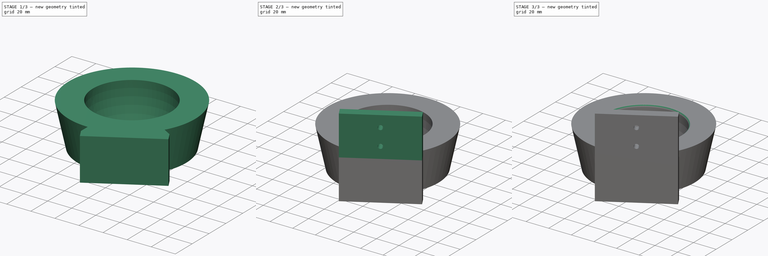
[diagram: build sequence overview — one tinted view per stage of 3, left to right]
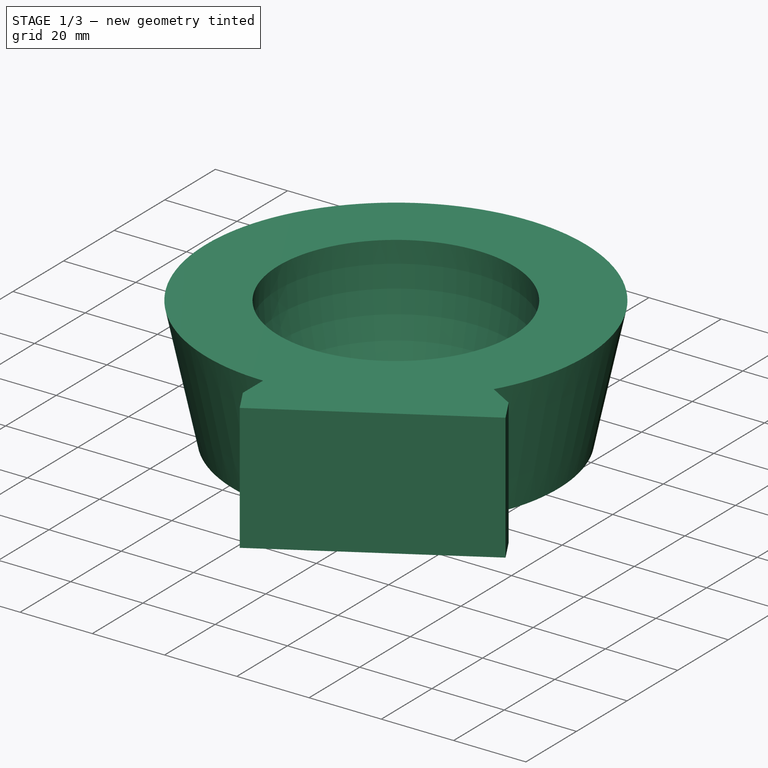
[diagram: stage 1 of 3 — iso view after this stage's code; geometry added in this stage tinted green]
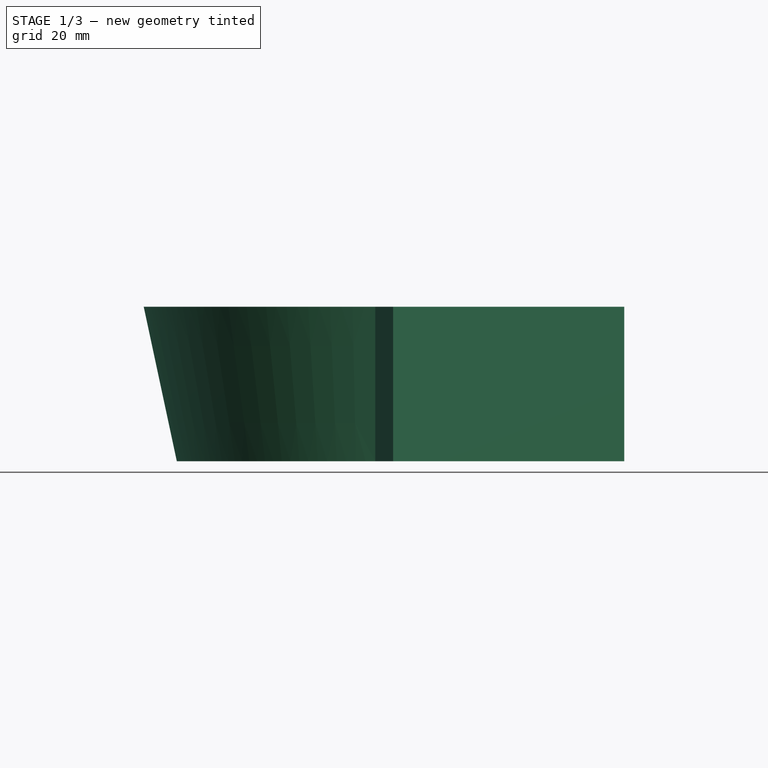
[diagram: stage 1 of 3 — front view after this stage's code; geometry added in this stage tinted green]
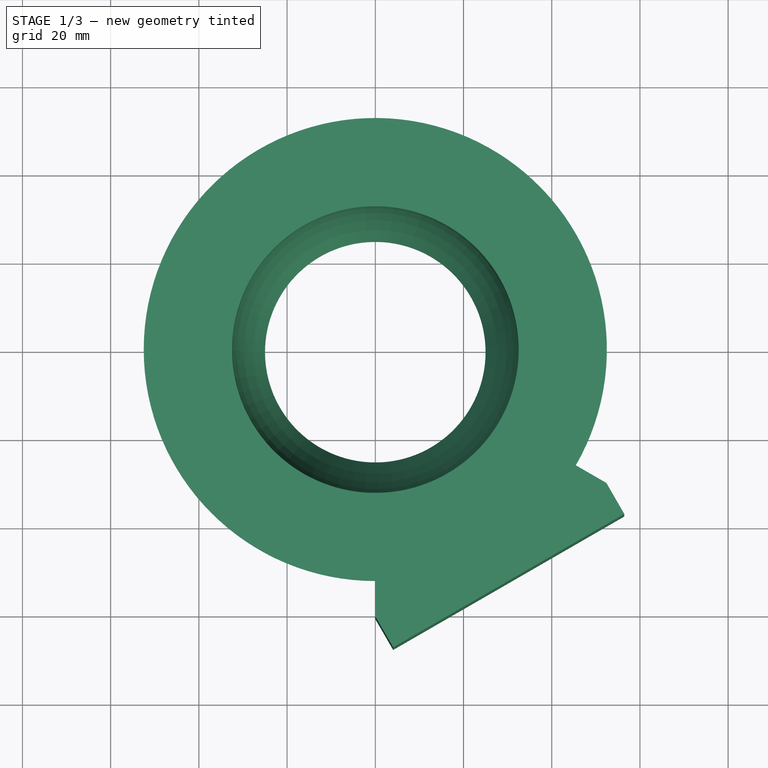
[diagram: stage 1 of 3 — top view after this stage's code; geometry added in this stage tinted green]
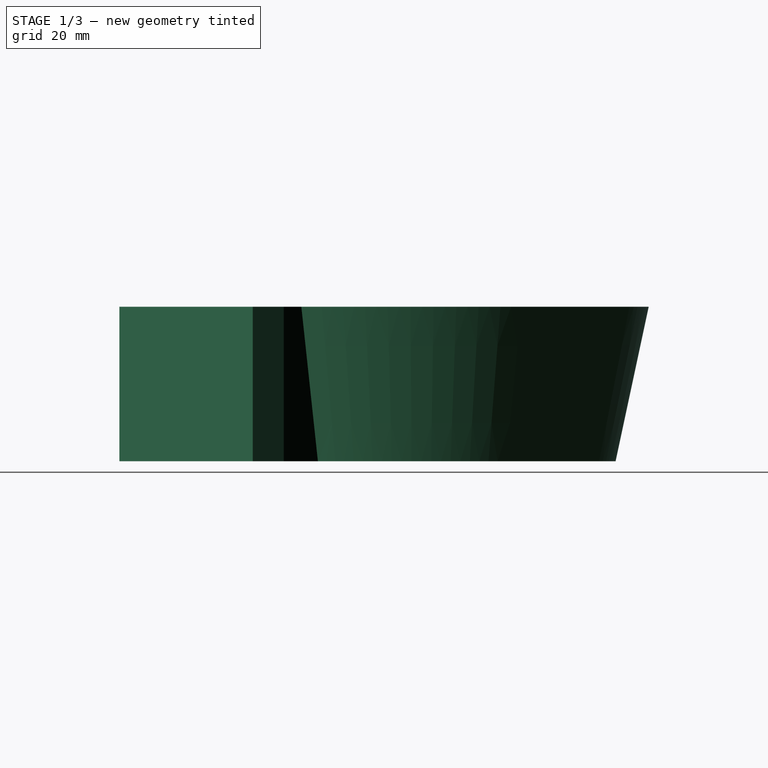
[diagram: stage 1 of 3 — right view after this stage's code; geometry added in this stage tinted green]
FCSTD DOCUMENT  (FreeCAD 0.20R0.20)
Label: heatgun-holder
License: All rights reserved
LicenseURL: http://en.wikipedia.org/wiki/All_rights_reserved
objects: Sketcher::SketchObject×5, PartDesign::Revolution×2, PartDesign::Pad×2, PartDesign::Fillet×2, PartDesign::Pocket×1, PartDesign::Chamfer×1, PartDesign::Body×1
note: 22 computed .brp shape members not serialized (recipe doc carries the construction recipe); baked Part::Feature solids carry a one-line shape summary decoded from their .brp

FEATURE [Sketcher::SketchObject] Sketch001
  FullyConstrained = true
  MapMode = 5
  Placement = pos=(0,0,0) rot=(1,0,0;1.5708rad)
  Support = -> [XZ_Plane]
  expr: Constraints[5] = 50mm / 2
  expr: Constraints[6] = 65mm / 2
  sketch-geometry (4):
    g0: LineSegment StartX=-52.5 StartY=35 StartZ=0 EndX=-45 EndY=7.7875e-12 EndZ=0
    g1: LineSegment StartX=-45 StartY=7.7875e-12 StartZ=0 EndX=-25 EndY=7.7875e-12 EndZ=0
    g2: LineSegment StartX=-32.5 StartY=35 StartZ=0 EndX=-52.5 EndY=35 EndZ=0
    g3: ArcOfCircle CenterX=29.5833 CenterY=30 CenterZ=0 NormalX=0 NormalY=0 NormalZ=1 AngleXU=0 Radius=62.2844 StartAngle=3.06123 EndAngle=3.64414
  constraints (13):
    c: Coincident(g0,g1)
    c: Horizontal(g1)
    c: Coincident(g2,g0)
    c: Horizontal(g2)
    c: PointOnObject(g0,g-1)
    c: DistanceX(g1,g-1) = 25
    c: DistanceX(g2,g-1) = 32.5
    c: DistanceX(g0,g2) = 20
    c: DistanceY(g0,g0) = 35
    c: Coincident(g3,g2)
    c: Coincident(g3,g1)
    c: DistanceY(g1,g3) = 30
    c: DistanceX(g0,g1) = 20
FEATURE [PartDesign::Revolution] Revolution
  Angle = 360
  Axis = (0,2e-16,1)
  Base = (0,0,0)
  Placement = pos=(0,0,0) rot=(1,0,0;1.5708rad)
  Profile = -> Sketch001
  ReferenceAxis = -> Sketch001 [V_Axis]
FEATURE [Sketcher::SketchObject] Sketch
  ExternalGeometry = -> [Revolution]
  FullyConstrained = true
  MapMode = 5
  Placement = pos=(0,0,0) rot=(0.57735,0.57735,0.57735;2.0944rad)
  Support = -> [YZ_Plane]
  sketch-geometry (4):
    g0: LineSegment StartX=-60.5 StartY=35 StartZ=0 EndX=-52.5 EndY=35 EndZ=0
    g1: LineSegment StartX=-52.5 StartY=35 StartZ=0 EndX=-45 EndY=7.7875e-12 EndZ=0
    g2: LineSegment StartX=-45 StartY=7.7875e-12 StartZ=0 EndX=-60.5 EndY=7.7875e-12 EndZ=0
    g3: LineSegment StartX=-60.5 StartY=7.7875e-12 StartZ=0 EndX=-60.5 EndY=35 EndZ=0
  constraints (10):
    c: Horizontal(g0)
    c: Coincident(g0,g1)
    c: Coincident(g1,g2)
    c: Horizontal(g2)
    c: Coincident(g2,g3)
    c: Coincident(g3,g0)
    c: Coincident(g0,g-3)
    c: Coincident(g1,g-4)
    c: DistanceX(g0,g0) = 8
    c: Vertical(g3)
FEATURE [PartDesign::Revolution] Revolution001
  Angle = 60
  Axis = (-2e-16,3e-16,1)
  Base = (0,0,0)
  BaseFeature = -> Revolution
  Placement = pos=(0,0,0) rot=(1,0,0;1.5708rad)
  Profile = -> Sketch
  ReferenceAxis = -> Sketch [V_Axis]
FEATURE [Sketcher::SketchObject] Sketch002
  ExternalGeometry = -> [Revolution001]
  FullyConstrained = true
  MapMode = 5
  Placement = pos=(-7.8e-15,9.7e-15,35) rot=(0,0,1;3.14159rad)
  Support = -> [Revolution001]
  sketch-geometry (5):
    g0: LineSegment StartX=-52.3945 StartY=30.25 StartZ=0 EndX=1.42e-14 EndY=60.5 EndZ=0
    g1: LineSegment StartX=-56.4473 StartY=37.2695 StartZ=0 EndX=-52.3945 EndY=30.25 EndZ=0
    g2: LineSegment StartX=1.42e-14 StartY=60.5 StartZ=0 EndX=-4.05273 EndY=67.5195 EndZ=0
    g3: LineSegment StartX=-4.05273 StartY=67.5195 StartZ=0 EndX=-30.25 EndY=52.3945 EndZ=0
    g4: LineSegment StartX=-30.25 StartY=52.3945 StartZ=0 EndX=-56.4473 EndY=37.2695 EndZ=0
  constraints (13):
    c: Coincident(g0,g-3)
    c: Coincident(g0,g-3)
    c: Coincident(g1,g0)
    c: Coincident(g0,g2)
    c: Parallel(g2,g1)
    c: Perpendicular(g1,g0)
    c: Coincident(g3,g4)
    c: Coincident(g4,g1)
    c: Coincident(g3,g2)
    c: Parallel(g3,g0)
    c: Parallel(g4,g0)
    c: Equal(g3,g4)
    c: PointOnObject(g3,g-3)
FEATURE [PartDesign::Pad] Pad
  BaseFeature = -> Revolution001
  Direction = (-2e-16,3e-16,1)
  Length = 10
  Length2 = 10
  Placement = pos=(0,0,0) rot=(1,0,0;1.5708rad)
  Profile = -> Sketch002
  ReferenceAxis = -> Sketch002 [N_Axis]
  Reversed = true
  Type = 2
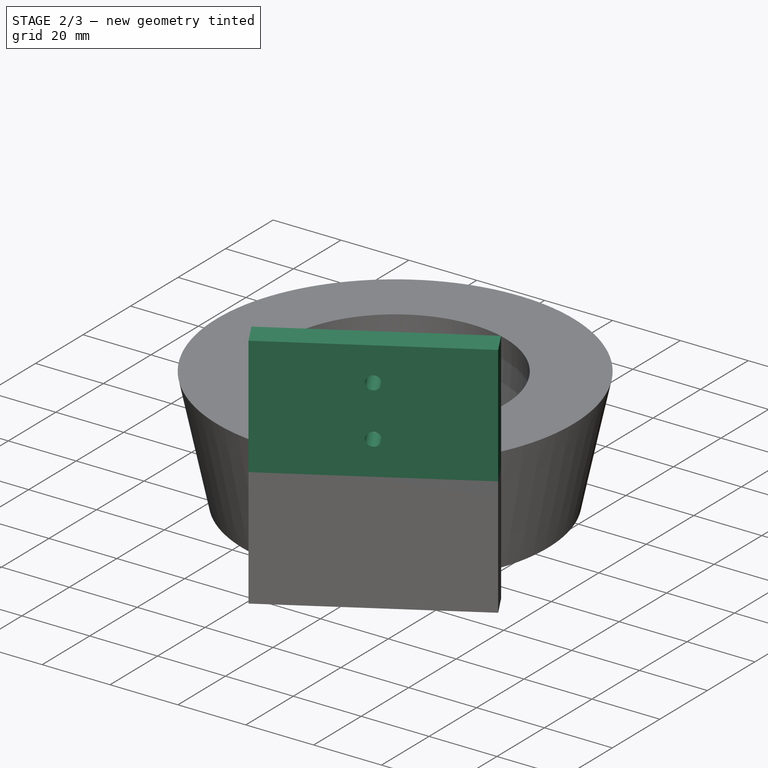
[diagram: stage 2 of 3 — iso view after this stage's code; geometry added in this stage tinted green]
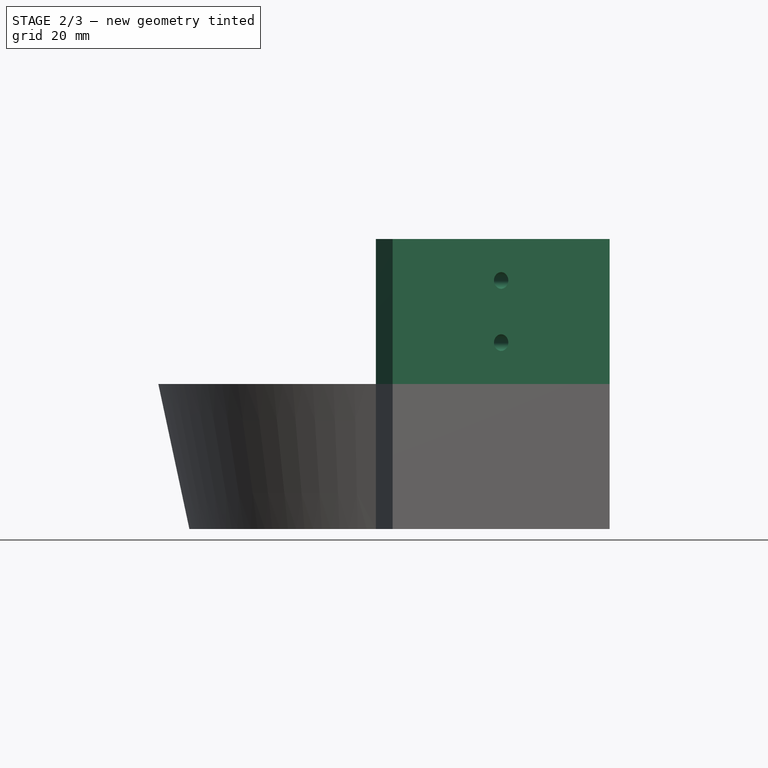
[diagram: stage 2 of 3 — front view after this stage's code; geometry added in this stage tinted green]
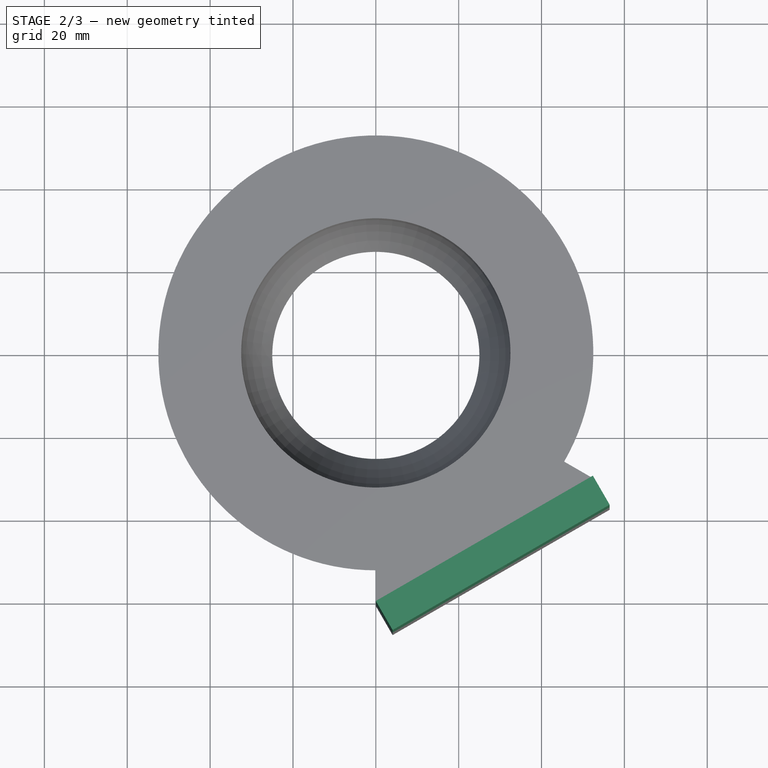
[diagram: stage 2 of 3 — top view after this stage's code; geometry added in this stage tinted green]
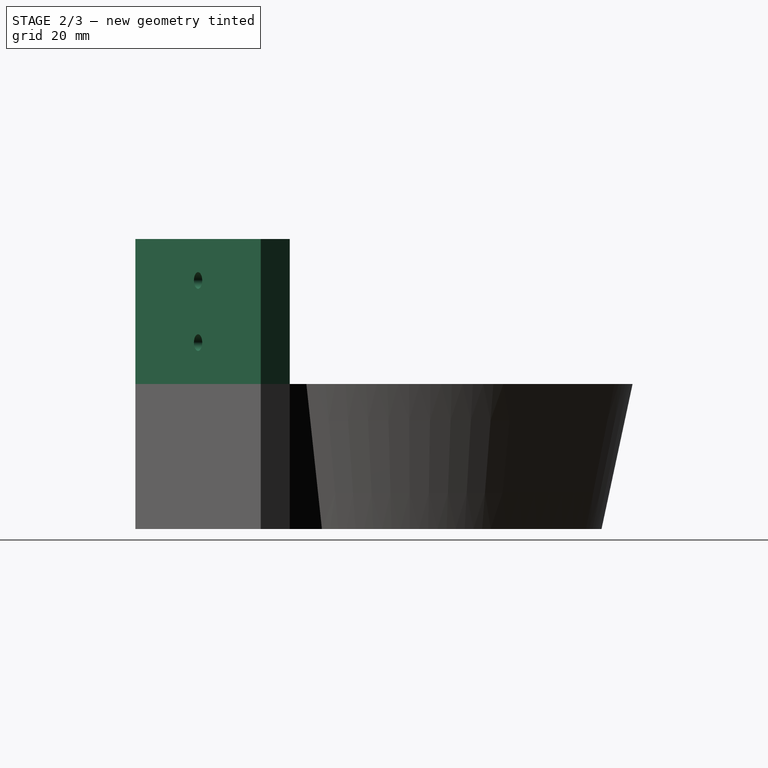
[diagram: stage 2 of 3 — right view after this stage's code; geometry added in this stage tinted green]
FEATURE [Sketcher::SketchObject] Sketch004
  ExternalGeometry = -> [Pad]
  FullyConstrained = true
  MapMode = 5
  Placement = pos=(-7.8e-15,9.7e-15,35) rot=(0,0,1;3.14159rad)
  Support = -> [Pad]
  sketch-geometry (4):
    g0: LineSegment StartX=-56.4473 StartY=37.2695 StartZ=0 EndX=-52.3945 EndY=30.25 EndZ=0
    g1: LineSegment StartX=-52.3945 StartY=30.25 StartZ=0 EndX=1.42e-14 EndY=60.5 EndZ=0
    g2: LineSegment StartX=1.42e-14 StartY=60.5 StartZ=0 EndX=-4.05273 EndY=67.5195 EndZ=0
    g3: LineSegment StartX=-4.05273 StartY=67.5195 StartZ=0 EndX=-56.4473 EndY=37.2695 EndZ=0
  constraints (9):
    c: Coincident(g0,g1)
    c: Coincident(g1,g2)
    c: Coincident(g2,g3)
    c: Coincident(g3,g0)
    c: Parallel(g0,g2)
    c: Parallel(g1,g3)
    c: Coincident(g0,g-3)
    c: Coincident(g2,g-4)
    c: Coincident(g1,g-5)
FEATURE [PartDesign::Pad] Pad001
  BaseFeature = -> Pad
  Direction = (-2e-16,3e-16,1)
  Length = 35
  Length2 = 10
  Placement = pos=(0,0,0) rot=(1,0,0;1.5708rad)
  Profile = -> Sketch004
  ReferenceAxis = -> Sketch004 [N_Axis]
  Type = 0
FEATURE [Sketcher::SketchObject] Sketch005
  ExternalGeometry = -> [Pad001]
  FullyConstrained = true
  MapMode = 5
  Placement = pos=(26.1973,-45.375,1.84e-14) rot=(-0.935113,-0.250563,0.250563;1.63783rad)
  Support = -> [Pad001]
  sketch-geometry (4):
    g0: Circle CenterX=0 CenterY=-60 CenterZ=0 NormalX=0 NormalY=0 NormalZ=1 AngleXU=0 Radius=2
    g1: Circle CenterX=0 CenterY=-45 CenterZ=0 NormalX=0 NormalY=0 NormalZ=1 AngleXU=0 Radius=2
    g2: LineSegment StartX=0 StartY=-60 StartZ=0 EndX=0 EndY=-70 EndZ=0
    g3: LineSegment StartX=0 StartY=-35 StartZ=0 EndX=0 EndY=-45 EndZ=0
  constraints (12):
    c: Diameter(g0) = 4
    c: Equal(g0,g1)
    c: PointOnObject(g0,g-2)
    c: PointOnObject(g1,g-2)
    c: DistanceY(g0,g1) = 15
    c: Vertical(g2)
    c: PointOnObject(g2,g-3)
    c: Coincident(g2,g0)
    c: PointOnObject(g3,g-4)
    c: Coincident(g3,g1)
    c: Vertical(g3)
    c: Equal(g3,g2)
FEATURE [PartDesign::Pocket] Pocket
  BaseFeature = -> Pad001
  Direction = (0.5,-0.866025,4e-16)
  Length = 5
  Length2 = 5
  Placement = pos=(0,0,0) rot=(1,0,0;1.5708rad)
  Profile = -> Sketch005
  ReferenceAxis = -> Sketch005 [N_Axis]
  Type = 2
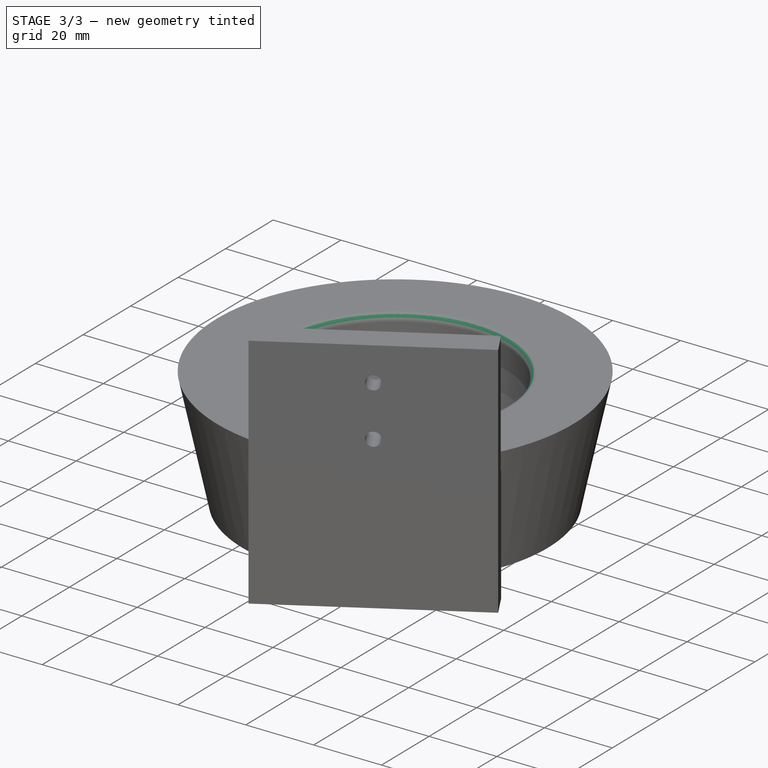
[diagram: stage 3 of 3 — iso view after this stage's code; geometry added in this stage tinted green]
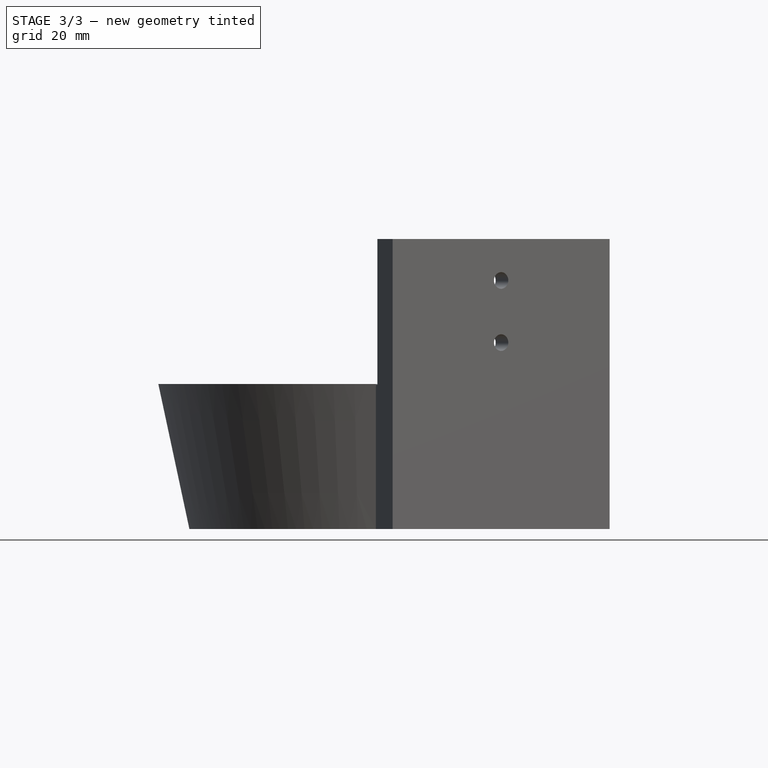
[diagram: stage 3 of 3 — front view after this stage's code; geometry added in this stage tinted green]
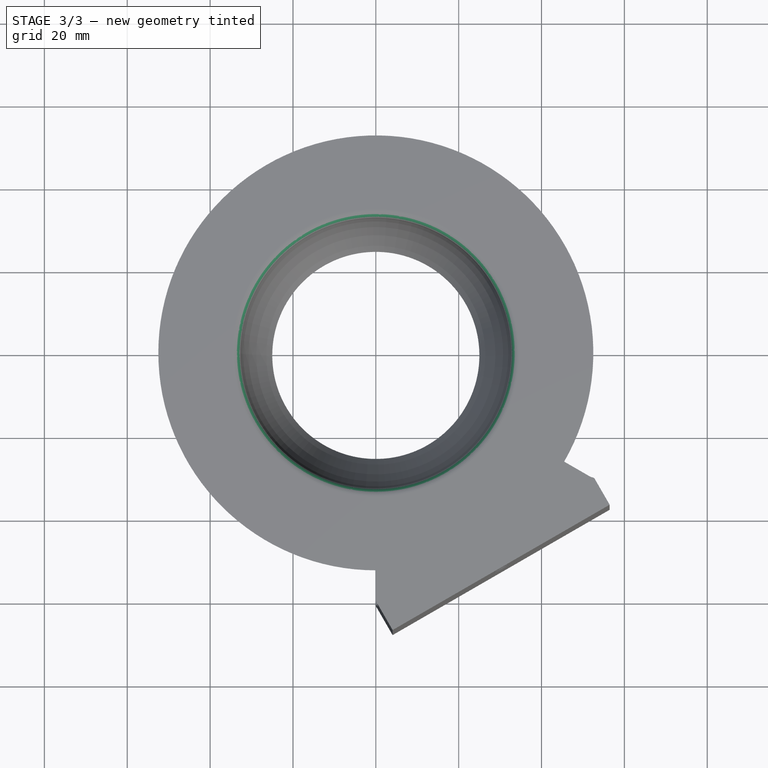
[diagram: stage 3 of 3 — top view after this stage's code; geometry added in this stage tinted green]
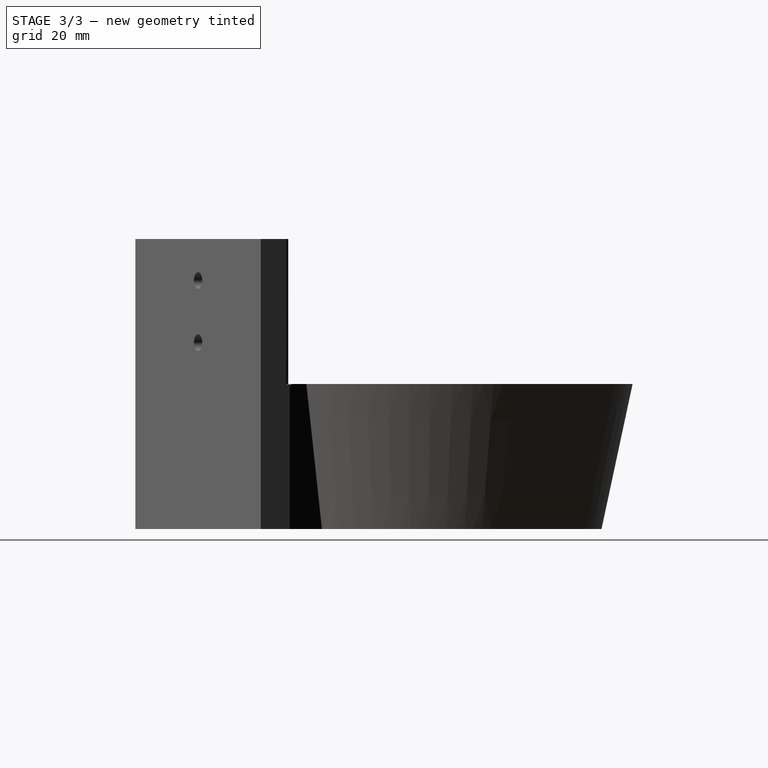
[diagram: stage 3 of 3 — right view after this stage's code; geometry added in this stage tinted green]
FEATURE [PartDesign::Chamfer] Chamfer
  Angle = 45
  Base = -> Pocket [Edge31,Edge30]
  BaseFeature = -> Pocket
  ChamferType = 0
  FlipDirection = false
  Placement = pos=(0,0,0) rot=(1,0,0;1.5708rad)
  Size = 2
  Size2 = 1
  SupportTransform = false
  UseAllEdges = false
FEATURE [PartDesign::Fillet] Fillet
  Base = -> Chamfer [Edge21]
  BaseFeature = -> Chamfer
  Placement = pos=(0,0,0) rot=(1,0,0;1.5708rad)
  Radius = 2
  SupportTransform = false
  UseAllEdges = false
FEATURE [PartDesign::Fillet] Fillet001
  Base = -> Fillet [Edge18,Edge15]
  BaseFeature = -> Fillet
  Placement = pos=(0,0,0) rot=(1,0,0;1.5708rad)
  Radius = 1
  SupportTransform = false
  UseAllEdges = false
FEATURE [PartDesign::Body] Body
  Group = -> [Sketch001,Revolution,Sketch,Revolution001,Sketch002,Pad,Sketch004,Pad001,Sketch005,Pocket,Chamfer,Fillet,Fillet001]
  Origin = -> Origin
  Tip = -> Fillet001
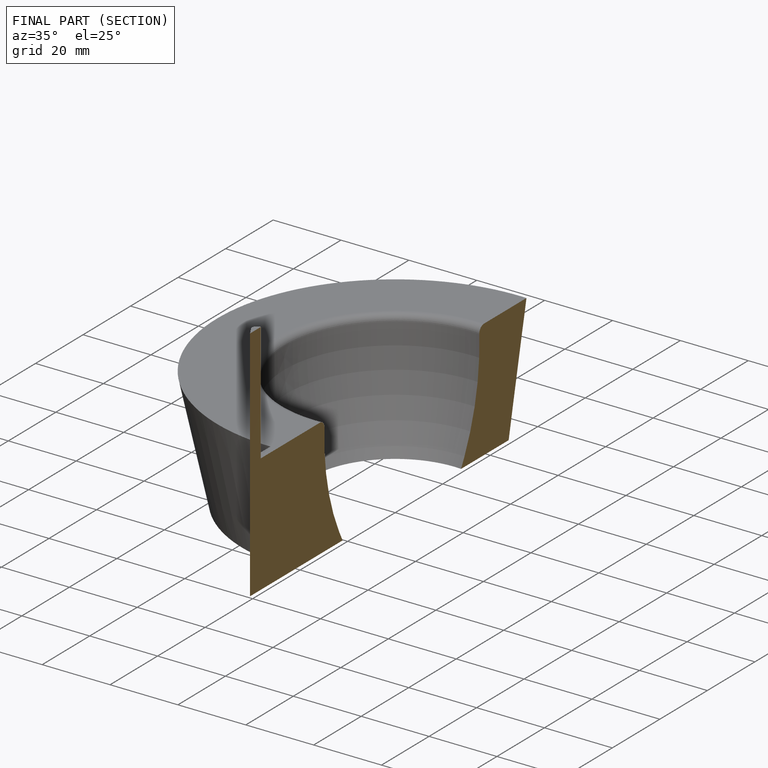
[diagram: finished part — half-section view (interior)]
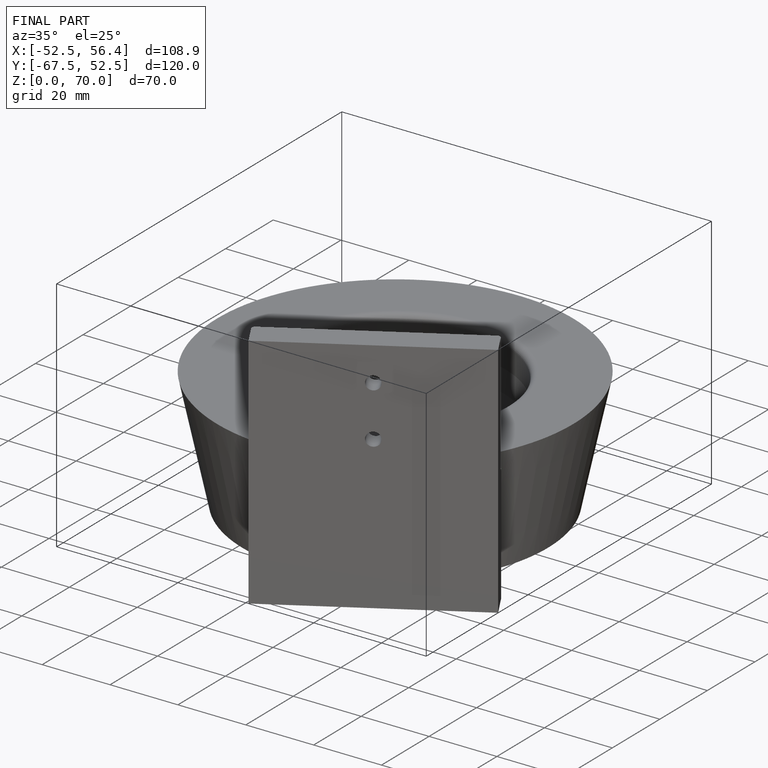
[diagram: finished part — iso view with bounding-box wireframe]
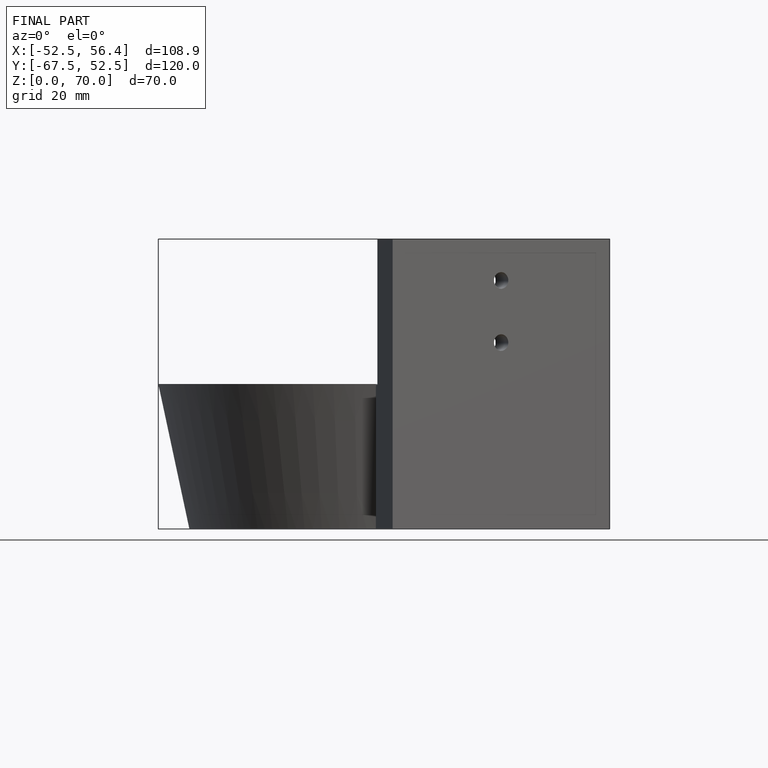
[diagram: finished part — front view with bounding-box wireframe]
